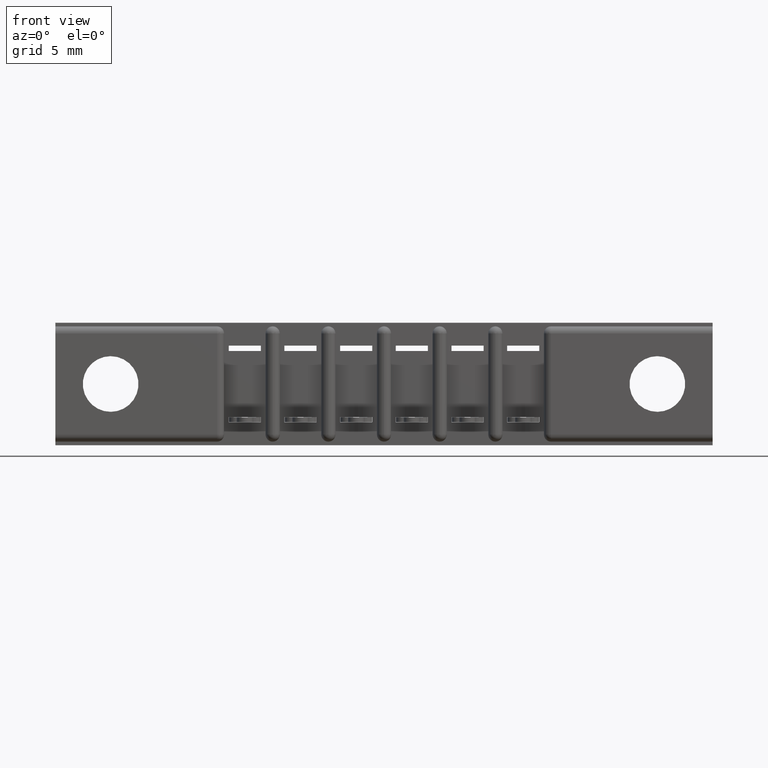
[diagram: clean part render]
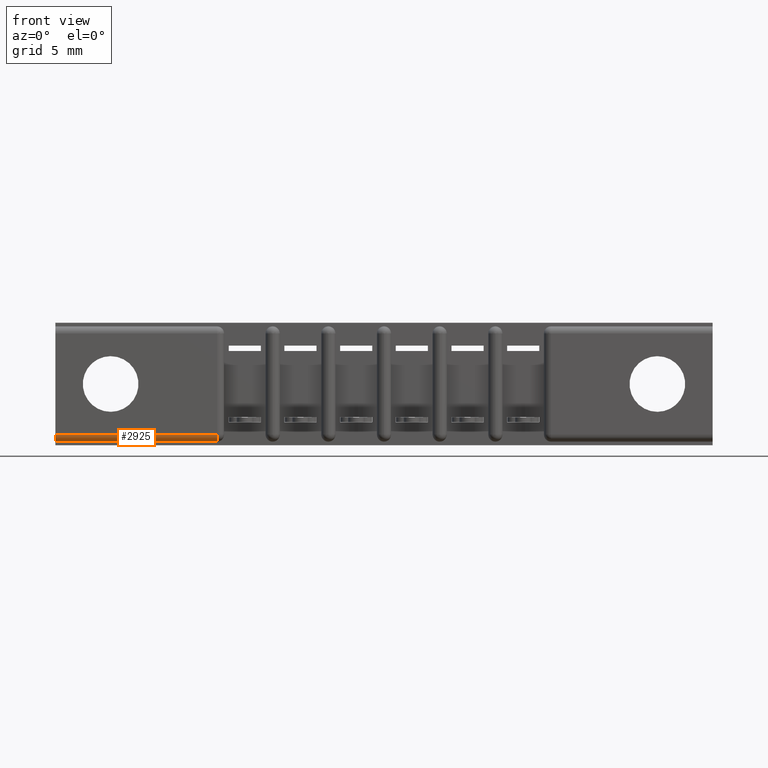
[diagram: same view with one face highlighted and labeled with its STEP entity id]
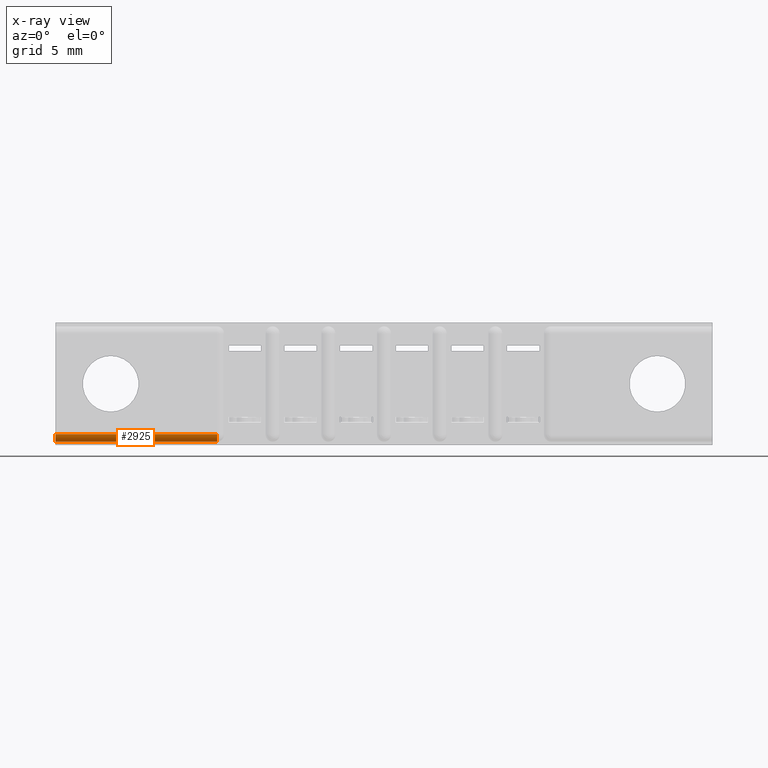
[diagram: x-ray of the same camera — body ghosted, the highlighted face saturated]
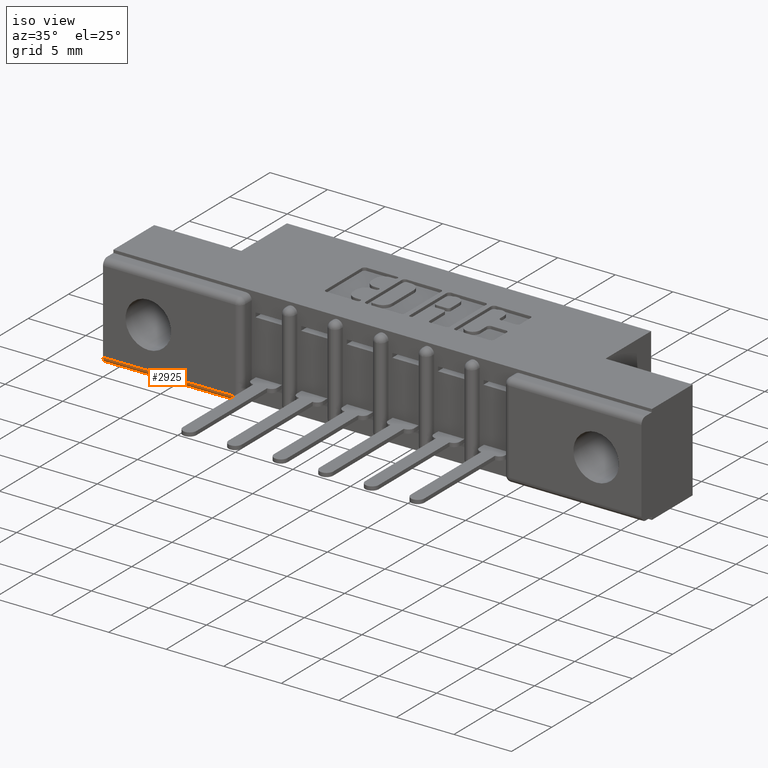
[diagram: same view with one face highlighted and labeled with its STEP entity id]
A machine part, front view. The second image highlights one B-rep face of the part: STEP entity #2925.
The next image is the same camera in x-ray: the body ghosted, the highlighted face saturated — about 0% of this face is hidden behind the body in this view.
A second angle (iso view) of the same face is appended — the face is thin or edge-on in the first view.
In plain terms, the highlighted cylindrical surface (edge-blend (fillet) strip) has radius 0.508 mm, axis along (1, 0, 0).
Its self-contained STEP definition (entity closure, byte-faithful):
#309 = AXIS2_PLACEMENT_3D ( 'NONE', #7472, #3147, #5234 ) ;
#836 = CIRCLE ( 'NONE', #4127, 0.01999999999999999000 ) ;
#1074 = FACE_OUTER_BOUND ( 'NONE', #4850, .T. ) ;
#1082 = ORIENTED_EDGE ( 'NONE', *, *, #1825, .F. ) ;
#1372 = CARTESIAN_POINT ( 'NONE',  ( 0.0000000000000000000, 0.02000000000000000000, -0.3130000000000000000 ) ) ;
#1436 = DIRECTION ( 'NONE',  ( 0.0000000000000000000, 0.0000000000000000000, -1.000000000000000000 ) ) ;
#1459 = EDGE_CURVE ( 'NONE', #4199, #3065, #4779, .T. ) ;
#1485 = DIRECTION ( 'NONE',  ( -1.000000000000000000, -0.0000000000000000000, -0.0000000000000000000 ) ) ;
#1825 = EDGE_CURVE ( 'NONE', #3065, #5999, #8375, .T. ) ;
#1959 = EDGE_CURVE ( 'NONE', #5999, #7896, #7676, .T. ) ;
#2149 = DIRECTION ( 'NONE',  ( 1.000000000000000000, 0.0000000000000000000, 0.0000000000000000000 ) ) ;
#2379 = CARTESIAN_POINT ( 'NONE',  ( 0.0000000000000000000, 0.0000000000000000000, -0.3130000000000000000 ) ) ;
#2605 = VECTOR ( 'NONE', #4564, 39.37007874015748100 ) ;
#2925 = ADVANCED_FACE ( 'NONE', ( #1074 ), #3828, .T. ) ;
#3025 = CARTESIAN_POINT ( 'NONE',  ( 0.4530000000000003500, 0.02000000000000000000, -0.3329999999999999600 ) ) ;
#3065 = VERTEX_POINT ( 'NONE', #4680 ) ;
#3147 = DIRECTION ( 'NONE',  ( 1.000000000000000000, 0.0000000000000000000, 0.0000000000000000000 ) ) ;
#3323 = AXIS2_PLACEMENT_3D ( 'NONE', #5099, #2149, #8801 ) ;
#3828 = CYLINDRICAL_SURFACE ( 'NONE', #309, 0.01999999999999999000 ) ;
#4127 = AXIS2_PLACEMENT_3D ( 'NONE', #1372, #8847, #1436 ) ;
#4199 = VERTEX_POINT ( 'NONE', #6350 ) ;
#4515 = CARTESIAN_POINT ( 'NONE',  ( 0.0000000000000000000, 0.02000000000000000000, -0.3329999999999999600 ) ) ;
#4564 = DIRECTION ( 'NONE',  ( 1.000000000000000000, 0.0000000000000000000, 0.0000000000000000000 ) ) ;
#4680 = CARTESIAN_POINT ( 'NONE',  ( 0.4530000000000003500, 0.0000000000000000000, -0.3130000000000000000 ) ) ;
#4779 = LINE ( 'NONE', #2379, #2605 ) ;
#4850 = EDGE_LOOP ( 'NONE', ( #7782, #8490, #1082, #8674 ) ) ;
#5014 = VECTOR ( 'NONE', #1485, 39.37007874015748100 ) ;
#5099 = CARTESIAN_POINT ( 'NONE',  ( 0.4530000000000003500, 0.02000000000000000000, -0.3130000000000000000 ) ) ;
#5234 = DIRECTION ( 'NONE',  ( 0.0000000000000000000, 0.0000000000000000000, -1.000000000000000000 ) ) ;
#5999 = VERTEX_POINT ( 'NONE', #3025 ) ;
#6350 = CARTESIAN_POINT ( 'NONE',  ( 0.0000000000000000000, 0.0000000000000000000, -0.3130000000000000000 ) ) ;
#7100 = EDGE_CURVE ( 'NONE', #7896, #4199, #836, .T. ) ;
#7472 = CARTESIAN_POINT ( 'NONE',  ( 0.0000000000000000000, 0.02000000000000000000, -0.3130000000000000000 ) ) ;
#7676 = LINE ( 'NONE', #4515, #5014 ) ;
#7768 = CARTESIAN_POINT ( 'NONE',  ( 1.083812417245411700E-017, 0.02000000000000000000, -0.3329999999999999600 ) ) ;
#7782 = ORIENTED_EDGE ( 'NONE', *, *, #7100, .F. ) ;
#7896 = VERTEX_POINT ( 'NONE', #7768 ) ;
#8375 = CIRCLE ( 'NONE', #3323, 0.01999999999999999000 ) ;
#8490 = ORIENTED_EDGE ( 'NONE', *, *, #1959, .F. ) ;
#8674 = ORIENTED_EDGE ( 'NONE', *, *, #1459, .F. ) ;
#8801 = DIRECTION ( 'NONE',  ( 0.0000000000000000000, 0.0000000000000000000, -1.000000000000000000 ) ) ;
#8847 = DIRECTION ( 'NONE',  ( -1.000000000000000000, 0.0000000000000000000, -0.0000000000000000000 ) ) ;